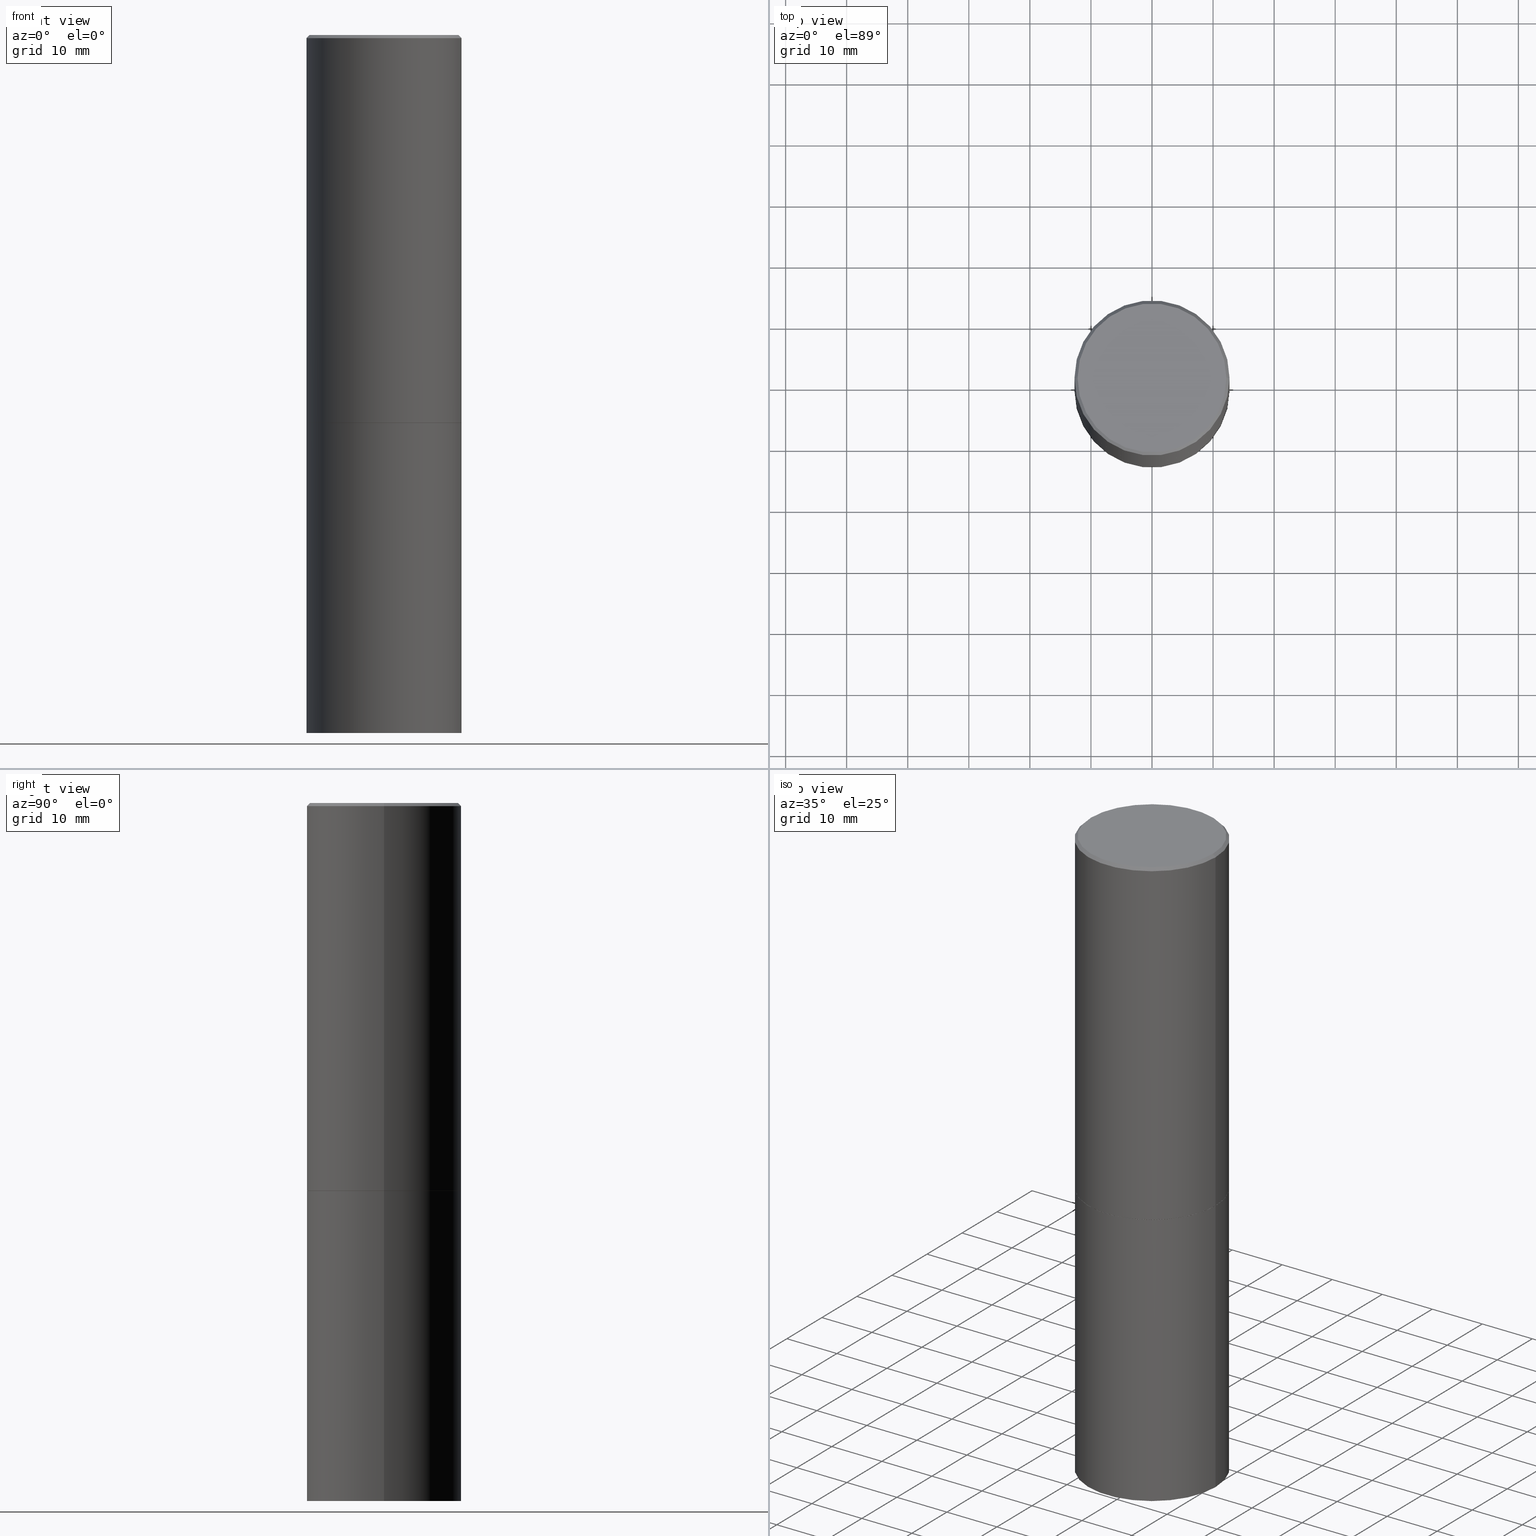
[diagram: canonical four-view strip — front | top / right | iso, engineering-drawing reading convention]
A machine part, canonical four-view strip (front | top / right | iso — engineering-drawing reading convention). The complete STEP part file that produces these views, byte-faithful:
ISO-10303-21;
HEADER;
FILE_DESCRIPTION (( 'STEP AP203' ),
    '1' );
FILE_NAME ('38517.STEP',
    '2024-02-27T23:18:11',
    ( '' ),
    ( '' ),
    'SwSTEP 2.0',
    'SolidWorks 2023',
    '' );
FILE_SCHEMA (( 'CONFIG_CONTROL_DESIGN' ));
ENDSEC;

DATA;
#1 = ORIENTED_EDGE ( 'NONE', *, *, #338, .F. ) ;
#2 = DIRECTION ( 'NONE',  ( -1.000000000000000000, 6.982962677686265922E-15, -4.876176775795935793E-29 ) ) ;
#3 = VERTEX_POINT ( 'NONE', #87 ) ;
#4 = EDGE_CURVE ( 'NONE', #202, #262, #39, .T. ) ;
#5 = ORIENTED_EDGE ( 'NONE', *, *, #4, .T. ) ;
#6 = PERSON_AND_ORGANIZATION ( #242, #137 ) ;
#7 = EDGE_LOOP ( 'NONE', ( #149, #59 ) ) ;
#8 = CARTESIAN_POINT ( 'NONE',  ( -0.5000000000000000000, -8.448070674724411945E-16, -2.499000000000000110 ) ) ;
#9 = CARTESIAN_POINT ( 'NONE',  ( 0.000000000000000000, 0.000000000000000000, 0.000000000000000000 ) ) ;
#10 = CARTESIAN_POINT ( 'NONE',  ( 6.111226546656657010E-29, -8.725211865769021935E-15, -2.499000000000000110 ) ) ;
#11 = EDGE_LOOP ( 'NONE', ( #346, #80, #342, #333 ) ) ;
#12 = DIRECTION ( 'NONE',  ( 1.000000000000000000, -6.982962677686266711E-15, 0.000000000000000000 ) ) ;
#13 = AXIS2_PLACEMENT_3D ( 'NONE', #180, #348, #64 ) ;
#14 = ORIENTED_EDGE ( 'NONE', *, *, #349, .T. ) ;
#15 = ADVANCED_FACE ( 'NONE', ( #125 ), #172, .F. ) ;
#16 = APPLICATION_CONTEXT ( 'configuration controlled 3d designs of mechanical parts and assemblies' ) ;
#17 = LINE ( 'NONE', #146, #173 ) ;
#18 = CALENDAR_DATE ( 2024, 27, 2 ) ;
#19 = CARTESIAN_POINT ( 'NONE',  ( -0.4989999999999999991, -5.177796641316744197E-15, -2.500000000000000444 ) ) ;
#20 = DIRECTION ( 'NONE',  ( -2.445468806185136597E-29, 3.491481338843145583E-15, 1.000000000000000000 ) ) ;
#21 = LINE ( 'NONE', #247, #121 ) ;
#22 = AXIS2_PLACEMENT_3D ( 'NONE', #10, #61, #354 ) ;
#23 = PERSON_AND_ORGANIZATION ( #242, #137 ) ;
#24 = CYLINDRICAL_SURFACE ( 'NONE', #200, 0.4999999999999998335 ) ;
#25 = FACE_OUTER_BOUND ( 'NONE', #223, .T. ) ;
#26 = DIRECTION ( 'NONE',  ( 0.7071067811865464625, -7.319954787623252890E-15, -0.7071067811865486830 ) ) ;
#27 = ORIENTED_EDGE ( 'NONE', *, *, #4, .F. ) ;
#28 = LENGTH_MEASURE_WITH_UNIT ( LENGTH_MEASURE( 0.02539999999999999897 ), #196 );
#29 = AXIS2_PLACEMENT_3D ( 'NONE', #72, #352, #68 ) ;
#30 = ORIENTED_EDGE ( 'NONE', *, *, #119, .F. ) ;
#31 = CC_DESIGN_PERSON_AND_ORGANIZATION_ASSIGNMENT ( #252, #322, ( #286 ) ) ;
#32 = AXIS2_PLACEMENT_3D ( 'NONE', #86, #43, #339 ) ;
#33 = EDGE_CURVE ( 'NONE', #100, #92, #261, .T. ) ;
#34 = LOCAL_TIME ( 18, 18, 11.00000000000000000, #205 ) ;
#35 = FACE_OUTER_BOUND ( 'NONE', #275, .T. ) ;
#36 = PERSON_AND_ORGANIZATION ( #242, #137 ) ;
#37 = CYLINDRICAL_SURFACE ( 'NONE', #29, 0.5000000000000000000 ) ;
#38 = ADVANCED_FACE ( 'NONE', ( #212 ), #235, .T. ) ;
#39 = CIRCLE ( 'NONE', #22, 0.5000000000000000000 ) ;
#40 = MANIFOLD_SOLID_BREP ( 'Body-Move/Copy2[1]', #271 ) ;
#41 = DIRECTION ( 'NONE',  ( -2.445468806185136597E-29, 3.491481338843145583E-15, 1.000000000000000000 ) ) ;
#42 = SECURITY_CLASSIFICATION_LEVEL ( 'unclassified' ) ;
#43 = DIRECTION ( 'NONE',  ( -2.445468806185136597E-29, 3.491481338843145583E-15, 1.000000000000000000 ) ) ;
#44 = DATE_AND_TIME ( #215, #151 ) ;
#45 = AXIS2_PLACEMENT_3D ( 'NONE', #269, #360, #154 ) ;
#46 = MECHANICAL_CONTEXT ( 'NONE', #166, 'mechanical' ) ;
#47 = CARTESIAN_POINT ( 'NONE',  ( 0.5000000000000000000, -1.221669320461215371E-14, -2.499000000000000110 ) ) ;
#48 = DIRECTION ( 'NONE',  ( 2.445468806185136597E-29, -3.491481338843145583E-15, -1.000000000000000000 ) ) ;
#49 = ADVANCED_BREP_SHAPE_REPRESENTATION ( '38517', ( #40, #285, #94 ), #111 ) ;
#50 = ADVANCED_FACE ( 'NONE', ( #144 ), #37, .T. ) ;
#51 = ORIENTED_EDGE ( 'NONE', *, *, #55, .F. ) ;
#52 = DIRECTION ( 'NONE',  ( 2.438088387897960049E-29, -3.491481338843145188E-15, -1.000000000000000000 ) ) ;
#53 = ORIENTED_EDGE ( 'NONE', *, *, #55, .T. ) ;
#54 = ORIENTED_EDGE ( 'NONE', *, *, #356, .T. ) ;
#55 = EDGE_CURVE ( 'NONE', #92, #279, #219, .T. ) ;
#56 = DIRECTION ( 'NONE',  ( 1.000000000000000000, -6.982962677686266711E-15, 0.000000000000000000 ) ) ;
#57 = CIRCLE ( 'NONE', #224, 0.4989999999999999991 ) ;
#58 = SECURITY_CLASSIFICATION ( '', '', #42 ) ;
#59 = ORIENTED_EDGE ( 'NONE', *, *, #204, .F. ) ;
#60 = COORDINATED_UNIVERSAL_TIME_OFFSET ( 5, 0, .BEHIND. ) ;
#61 = DIRECTION ( 'NONE',  ( -2.445468806185136597E-29, 3.491481338843145583E-15, 1.000000000000000000 ) ) ;
#62 = AXIS2_PLACEMENT_3D ( 'NONE', #287, #77, #187 ) ;
#63 = DIRECTION ( 'NONE',  ( -2.445468806185136597E-29, 3.491481338843145583E-15, 1.000000000000000000 ) ) ;
#64 = DIRECTION ( 'NONE',  ( -1.000000000000000000, 6.982962677686265922E-15, -4.876176775795935793E-29 ) ) ;
#65 = DIRECTION ( 'NONE',  ( -2.445468806185136877E-29, 3.491481338843145188E-15, 1.000000000000000000 ) ) ;
#66 = EDGE_LOOP ( 'NONE', ( #115, #171 ) ) ;
#67 = EDGE_CURVE ( 'NONE', #202, #169, #17, .T. ) ;
#68 = DIRECTION ( 'NONE',  ( 1.000000000000000000, -6.982962677686266711E-15, 4.876176775795935793E-29 ) ) ;
#69 = PERSON_AND_ORGANIZATION_ROLE ( 'design_supplier' ) ;
#70 = ORIENTED_EDGE ( 'NONE', *, *, #217, .T. ) ;
#71 = CIRCLE ( 'NONE', #45, 0.5000000000000000000 ) ;
#72 = CARTESIAN_POINT ( 'NONE',  ( 0.000000000000000000, 0.000000000000000000, 0.000000000000000000 ) ) ;
#73 = DIRECTION ( 'NONE',  ( 1.000000000000000000, -6.982962677686267499E-15, 4.876176775795936353E-29 ) ) ;
#74 = ADVANCED_FACE ( 'NONE', ( #118 ), #206, .T. ) ;
#75 = CARTESIAN_POINT ( 'NONE',  ( 6.113672015462842613E-29, -8.728703347107864943E-15, -2.500000000000000000 ) ) ;
#76 = DIRECTION ( 'NONE',  ( 0.7071067811864267805, -2.468850131080992517E-15, 0.7071067811866682540 ) ) ;
#77 = DIRECTION ( 'NONE',  ( 2.445468806185136597E-29, -3.491481338843145583E-15, -1.000000000000000000 ) ) ;
#78 = EDGE_CURVE ( 'NONE', #210, #202, #21, .T. ) ;
#79 = AXIS2_PLACEMENT_3D ( 'NONE', #259, #41, #267 ) ;
#80 = ORIENTED_EDGE ( 'NONE', *, *, #33, .T. ) ;
#81 = UNCERTAINTY_MEASURE_WITH_UNIT (LENGTH_MEASURE( 1.000000000000000082E-05 ), #306, 'distance_accuracy_value', 'NONE');
#82 = ADVANCED_FACE ( 'NONE', ( #250 ), #302, .T. ) ;
#83 = EDGE_LOOP ( 'NONE', ( #239, #197 ) ) ;
#84 = DATE_AND_TIME ( #260, #159 ) ;
#85 = AXIS2_PLACEMENT_3D ( 'NONE', #270, #281, #251 ) ;
#86 = CARTESIAN_POINT ( 'NONE',  ( 6.113672015462842613E-29, -8.728703347107866520E-15, -2.500000000000000444 ) ) ;
#87 = CARTESIAN_POINT ( 'NONE',  ( -0.4799999999999996492, 3.386736898677836830E-15, 1.280553747027767124E-17 ) ) ;
#88 = VERTEX_POINT ( 'NONE', #353 ) ;
#89 = APPROVAL ( #139, 'UNSPECIFIED' ) ;
#90 = CYLINDRICAL_SURFACE ( 'NONE', #303, 0.4999999999999998335 ) ;
#91 = DIRECTION ( 'NONE',  ( 1.000000000000000000, -6.982962677686269077E-15, 0.000000000000000000 ) ) ;
#92 = VERTEX_POINT ( 'NONE', #209 ) ;
#93 = VECTOR ( 'NONE', #328, 39.37007874015748143 ) ;
#94 = AXIS2_PLACEMENT_3D ( 'NONE', #222, #336, #253 ) ;
#95 = EDGE_CURVE ( 'NONE', #210, #325, #57, .T. ) ;
#96 = APPROVAL_DATE_TIME ( #84, #89 ) ;
#97 = CARTESIAN_POINT ( 'NONE',  ( 0.4999999999999997224, -3.500078625662627502E-15, -0.02000000000000011144 ) ) ;
#98 = PERSON_AND_ORGANIZATION_ROLE ( 'classification_officer' ) ;
#99 = CC_DESIGN_DATE_AND_TIME_ASSIGNMENT ( #184, #246, ( #58 ) ) ;
#100 = VERTEX_POINT ( 'NONE', #258 ) ;
#101 = ADVANCED_FACE ( 'NONE', ( #238 ), #90, .T. ) ;
#102 = ORIENTED_EDGE ( 'NONE', *, *, #299, .F. ) ;
#103 = AXIS2_PLACEMENT_3D ( 'NONE', #135, #165, #168 ) ;
#104 = CONICAL_SURFACE ( 'NONE', #62, 0.4999999999999997224, 0.7853981633974467247 ) ;
#105 = CARTESIAN_POINT ( 'NONE',  ( 3.491481338843243007E-15, 0.4999999999999842903, -4.500000000000001776 ) ) ;
#106 = ORIENTED_EDGE ( 'NONE', *, *, #217, .F. ) ;
#107 = ORIENTED_EDGE ( 'NONE', *, *, #280, .T. ) ;
#108 = EDGE_LOOP ( 'NONE', ( #237, #207, #319, #51 ) ) ;
#109 = CIRCLE ( 'NONE', #85, 0.4999999999999997224 ) ;
#110 = EDGE_CURVE ( 'NONE', #325, #262, #240, .T. ) ;
#111 =( GEOMETRIC_REPRESENTATION_CONTEXT ( 3 ) GLOBAL_UNCERTAINTY_ASSIGNED_CONTEXT ( ( #81 ) ) GLOBAL_UNIT_ASSIGNED_CONTEXT ( ( #306, #225, #185 ) ) REPRESENTATION_CONTEXT ( 'NONE', 'WORKASPACE' ) );
#112 = CARTESIAN_POINT ( 'NONE',  ( 0.5000000000000000000, -3.491481338843133355E-15, 2.438088387897967896E-29 ) ) ;
#113 = DIRECTION ( 'NONE',  ( -2.445468806185136877E-29, 3.491481338843145188E-15, 1.000000000000000000 ) ) ;
#114 = ADVANCED_FACE ( 'NONE', ( #35 ), #104, .T. ) ;
#115 = ORIENTED_EDGE ( 'NONE', *, *, #119, .T. ) ;
#116 = CIRCLE ( 'NONE', #295, 0.4989999999999999991 ) ;
#117 = DIRECTION ( 'NONE',  ( 1.000000000000000000, -6.982962677686266711E-15, 0.000000000000000000 ) ) ;
#118 = FACE_OUTER_BOUND ( 'NONE', #284, .T. ) ;
#119 = EDGE_CURVE ( 'NONE', #3, #88, #307, .T. ) ;
#120 = EDGE_LOOP ( 'NONE', ( #256, #14, #178, #106 ) ) ;
#121 = VECTOR ( 'NONE', #76, 39.37007874015748143 ) ;
#122 = CARTESIAN_POINT ( 'NONE',  ( 6.113672015462842613E-29, -8.728703347107866520E-15, -2.500000000000000444 ) ) ;
#123 = CARTESIAN_POINT ( 'NONE',  ( 6.113672015462842613E-29, -8.728703347107864943E-15, -2.500000000000000000 ) ) ;
#124 = COORDINATED_UNIVERSAL_TIME_OFFSET ( 5, 0, .BEHIND. ) ;
#125 = FACE_OUTER_BOUND ( 'NONE', #66, .T. ) ;
#126 = DIRECTION ( 'NONE',  ( 1.000000000000000000, -6.982962677686267499E-15, 4.876036955247132767E-29 ) ) ;
#127 = ADVANCED_FACE ( 'NONE', ( #193 ), #249, .F. ) ;
#128 = VECTOR ( 'NONE', #26, 39.37007874015748143 ) ;
#129 = APPROVAL_PERSON_ORGANIZATION ( #36, #89, #145 ) ;
#130 = CALENDAR_DATE ( 2024, 27, 2 ) ;
#131 = CARTESIAN_POINT ( 'NONE',  ( 0.4989999999999999991, -1.221320172327331386E-14, -2.500000000000000444 ) ) ;
#132 = CIRCLE ( 'NONE', #344, 0.5000000000000000000 ) ;
#133 = ORIENTED_EDGE ( 'NONE', *, *, #95, .T. ) ;
#134 = ADVANCED_FACE ( 'NONE', ( #25 ), #24, .T. ) ;
#135 = CARTESIAN_POINT ( 'NONE',  ( 6.111226546656657010E-29, -8.725211865769021935E-15, -2.499000000000000110 ) ) ;
#136 = CIRCLE ( 'NONE', #195, 0.4799999999999996492 ) ;
#137 = ORGANIZATION ( 'UNSPECIFIED', 'UNSPECIFIED', '' ) ;
#138 = ORIENTED_EDGE ( 'NONE', *, *, #338, .T. ) ;
#139 = APPROVAL_STATUS ( 'not_yet_approved' ) ;
#140 = EDGE_CURVE ( 'NONE', #323, #100, #71, .T. ) ;
#141 = ORIENTED_EDGE ( 'NONE', *, *, #183, .F. ) ;
#142 = CC_DESIGN_PERSON_AND_ORGANIZATION_ASSIGNMENT ( #23, #69, ( #286 ) ) ;
#143 = CIRCLE ( 'NONE', #213, 0.5000000000000000000 ) ;
#144 = FACE_OUTER_BOUND ( 'NONE', #108, .T. ) ;
#145 = APPROVAL_ROLE ( '' ) ;
#146 = CARTESIAN_POINT ( 'NONE',  ( 0.4999999999999998335, -3.491481338843132566E-15, 2.438088387897967336E-29 ) ) ;
#147 = ORIENTED_EDGE ( 'NONE', *, *, #110, .T. ) ;
#148 = PERSON_AND_ORGANIZATION ( #242, #137 ) ;
#149 = ORIENTED_EDGE ( 'NONE', *, *, #140, .F. ) ;
#150 = AXIS2_PLACEMENT_3D ( 'NONE', #347, #48, #160 ) ;
#151 = LOCAL_TIME ( 18, 18, 11.00000000000000000, #124 ) ;
#152 = LOCAL_TIME ( 18, 18, 11.00000000000000000, #264 ) ;
#153 = COORDINATED_UNIVERSAL_TIME_OFFSET ( 5, 0, .BEHIND. ) ;
#154 = DIRECTION ( 'NONE',  ( 1.000000000000000000, -6.982962677686266711E-15, 0.000000000000000000 ) ) ;
#155 = DIRECTION ( 'NONE',  ( -2.445468806185136877E-29, 3.491481338843145188E-15, 1.000000000000000000 ) ) ;
#156 = CARTESIAN_POINT ( 'NONE',  ( 6.113672015462842613E-29, -8.728703347107866520E-15, -2.500000000000000444 ) ) ;
#157 = PERSON_AND_ORGANIZATION_ROLE ( 'creator' ) ;
#158 = AXIS2_PLACEMENT_3D ( 'NONE', #305, #329, #301 ) ;
#159 = LOCAL_TIME ( 18, 18, 11.00000000000000000, #60 ) ;
#160 = DIRECTION ( 'NONE',  ( -1.000000000000000000, 6.982962677686266711E-15, 0.000000000000000000 ) ) ;
#161 = CARTESIAN_POINT ( 'NONE',  ( 1.100460962783311469E-28, -1.571166602479415690E-14, -4.500000000000000000 ) ) ;
#162 = ORIENTED_EDGE ( 'NONE', *, *, #192, .F. ) ;
#163 = CC_DESIGN_PERSON_AND_ORGANIZATION_ASSIGNMENT ( #148, #157, ( #290 ) ) ;
#164 = LINE ( 'NONE', #276, #128 ) ;
#165 = DIRECTION ( 'NONE',  ( -2.445468806185136597E-29, 3.491481338843145583E-15, 1.000000000000000000 ) ) ;
#166 = APPLICATION_CONTEXT ( 'configuration controlled 3d designs of mechanical parts and assemblies' ) ;
#167 = CC_DESIGN_PERSON_AND_ORGANIZATION_ASSIGNMENT ( #6, #268, ( #236 ) ) ;
#168 = DIRECTION ( 'NONE',  ( 1.000000000000000000, -6.982962677686265133E-15, 0.000000000000000000 ) ) ;
#169 = VERTEX_POINT ( 'NONE', #97 ) ;
#170 = CIRCLE ( 'NONE', #190, 0.4999999999999997224 ) ;
#171 = ORIENTED_EDGE ( 'NONE', *, *, #183, .T. ) ;
#172 = PLANE ( 'NONE',  #13 ) ;
#173 = VECTOR ( 'NONE', #155, 39.37007874015748143 ) ;
#174 = PERSON_AND_ORGANIZATION ( #242, #137 ) ;
#175 = DIRECTION ( 'NONE',  ( -0.7071067811864267805, 7.493145998869918709E-15, 0.7071067811866682540 ) ) ;
#176 = CALENDAR_DATE ( 2024, 27, 2 ) ;
#177 = CARTESIAN_POINT ( 'NONE',  ( -0.5000000000000000000, 3.552713678800500929E-15, -2.459467545127452891E-29 ) ) ;
#178 = ORIENTED_EDGE ( 'NONE', *, *, #78, .T. ) ;
#179 = PRODUCT_DEFINITION_SHAPE ( 'NONE', 'NONE',  #290 ) ;
#180 = CARTESIAN_POINT ( 'NONE',  ( 3.351822085289405181E-15, 0.4799999999999996492, -1.669508273909558064E-15 ) ) ;
#181 = DIRECTION ( 'NONE',  ( -2.445468806185136597E-29, 3.491481338843145583E-15, 1.000000000000000000 ) ) ;
#182 = DIRECTION ( 'NONE',  ( -2.445468806185136877E-29, 3.491481338843145188E-15, 1.000000000000000000 ) ) ;
#183 = EDGE_CURVE ( 'NONE', #88, #3, #136, .T. ) ;
#184 = DATE_AND_TIME ( #130, #152 ) ;
#185 =( NAMED_UNIT ( * ) SI_UNIT ( $, .STERADIAN. ) SOLID_ANGLE_UNIT ( ) );
#186 = LINE ( 'NONE', #330, #93 ) ;
#187 = DIRECTION ( 'NONE',  ( -1.000000000000000000, 6.982962677686266711E-15, 0.000000000000000000 ) ) ;
#188 = APPLICATION_PROTOCOL_DEFINITION ( 'international standard', 'config_control_design', 1994, #166 ) ;
#189 = DIRECTION ( 'NONE',  ( -2.438088387897960049E-29, 3.491481338843145188E-15, 1.000000000000000000 ) ) ;
#190 = AXIS2_PLACEMENT_3D ( 'NONE', #208, #320, #203 ) ;
#191 = DIRECTION ( 'NONE',  ( -2.445468806185136597E-29, 3.491481338843145583E-15, 1.000000000000000000 ) ) ;
#192 = EDGE_CURVE ( 'NONE', #88, #169, #164, .T. ) ;
#193 = FACE_OUTER_BOUND ( 'NONE', #83, .T. ) ;
#194 = DESIGN_CONTEXT ( 'detailed design', #16, 'design' ) ;
#195 = AXIS2_PLACEMENT_3D ( 'NONE', #304, #20, #126 ) ;
#196 =( LENGTH_UNIT ( ) NAMED_UNIT ( * ) SI_UNIT ( $, .METRE. ) );
#197 = ORIENTED_EDGE ( 'NONE', *, *, #349, .F. ) ;
#198 = ORIENTED_EDGE ( 'NONE', *, *, #299, .T. ) ;
#199 = CLOSED_SHELL ( 'NONE', ( #363, #101, #114, #74, #134, #38, #127, #15 ) ) ;
#200 = AXIS2_PLACEMENT_3D ( 'NONE', #332, #191, #73 ) ;
#201 = DATE_AND_TIME ( #176, #34 ) ;
#202 = VERTEX_POINT ( 'NONE', #47 ) ;
#203 = DIRECTION ( 'NONE',  ( 1.000000000000000000, -6.982962677686266711E-15, 0.000000000000000000 ) ) ;
#204 = EDGE_CURVE ( 'NONE', #100, #323, #143, .T. ) ;
#205 = COORDINATED_UNIVERSAL_TIME_OFFSET ( 5, 0, .BEHIND. ) ;
#206 = CONICAL_SURFACE ( 'NONE', #150, 0.4999999999999997224, 0.7853981633974467247 ) ;
#207 = ORIENTED_EDGE ( 'NONE', *, *, #204, .T. ) ;
#208 = CARTESIAN_POINT ( 'NONE',  ( 4.890937612370301184E-31, -6.982962677686329819E-17, -0.02000000000000011144 ) ) ;
#209 = CARTESIAN_POINT ( 'NONE',  ( -0.5000000000000000000, -8.667471007150509990E-15, -2.500000000000000000 ) ) ;
#210 = VERTEX_POINT ( 'NONE', #131 ) ;
#211 = ADVANCED_FACE ( 'NONE', ( #358 ), #366, .T. ) ;
#212 = FACE_OUTER_BOUND ( 'NONE', #120, .T. ) ;
#213 = AXIS2_PLACEMENT_3D ( 'NONE', #161, #274, #243 ) ;
#214 = DIRECTION ( 'NONE',  ( -1.000000000000000000, 6.982962677686265922E-15, -4.876176775795935793E-29 ) ) ;
#215 = CALENDAR_DATE ( 2024, 27, 2 ) ;
#216 = APPROVAL_STATUS ( 'not_yet_approved' ) ;
#217 = EDGE_CURVE ( 'NONE', #262, #202, #359, .T. ) ;
#218 = DIRECTION ( 'NONE',  ( 1.000000000000000000, -6.982962677686265922E-15, 4.876176775795935793E-29 ) ) ;
#219 = CIRCLE ( 'NONE', #79, 0.5000000000000000000 ) ;
#220 = DIMENSIONAL_EXPONENTS ( 1.000000000000000000, 0.000000000000000000, 0.000000000000000000, 0.000000000000000000, 0.000000000000000000, 0.000000000000000000, 0.000000000000000000 ) ;
#221 = CARTESIAN_POINT ( 'NONE',  ( -0.4999999999999998335, 3.552713678800499746E-15, -2.459467545127452330E-29 ) ) ;
#222 = CARTESIAN_POINT ( 'NONE',  ( 0.000000000000000000, 0.000000000000000000, 0.000000000000000000 ) ) ;
#223 = EDGE_LOOP ( 'NONE', ( #102, #70, #314, #234 ) ) ;
#224 = AXIS2_PLACEMENT_3D ( 'NONE', #122, #315, #12 ) ;
#225 =( NAMED_UNIT ( * ) PLANE_ANGLE_UNIT ( ) SI_UNIT ( $, .RADIAN. ) );
#226 = ORIENTED_EDGE ( 'NONE', *, *, #67, .F. ) ;
#227 = APPROVAL_DATE_TIME ( #357, #334 ) ;
#228 = ORIENTED_EDGE ( 'NONE', *, *, #192, .T. ) ;
#229 = AXIS2_PLACEMENT_3D ( 'NONE', #316, #181, #293 ) ;
#230 = CC_DESIGN_APPROVAL ( #89, ( #286 ) ) ;
#231 = EDGE_CURVE ( 'NONE', #323, #279, #278, .T. ) ;
#232 = CARTESIAN_POINT ( 'NONE',  ( 0.5000000000000000000, -1.222018468595099830E-14, -2.500000000000000000 ) ) ;
#233 = APPROVAL_STATUS ( 'not_yet_approved' ) ;
#234 = ORIENTED_EDGE ( 'NONE', *, *, #280, .F. ) ;
#235 = CONICAL_SURFACE ( 'NONE', #282, 0.4989999999999999991, 0.7853981633972775267 ) ;
#236 = PRODUCT ( '38517', '38517', '', ( #46 ) ) ;
#237 = ORIENTED_EDGE ( 'NONE', *, *, #33, .F. ) ;
#238 = FACE_OUTER_BOUND ( 'NONE', #337, .T. ) ;
#239 = ORIENTED_EDGE ( 'NONE', *, *, #95, .F. ) ;
#240 = LINE ( 'NONE', #355, #257 ) ;
#241 = DIRECTION ( 'NONE',  ( -2.445468806185136597E-29, 3.491481338843145583E-15, 1.000000000000000000 ) ) ;
#242 = PERSON ( 'UNSPECIFIED', 'UNSPECIFIED', 'UNSPECIFIED', ('UNSPECIFIED'), ('UNSPECIFIED'), ('UNSPECIFIED') ) ;
#243 = DIRECTION ( 'NONE',  ( 1.000000000000000000, -6.982962677686266711E-15, 0.000000000000000000 ) ) ;
#244 = PERSON_AND_ORGANIZATION ( #242, #137 ) ;
#245 = CC_DESIGN_DATE_AND_TIME_ASSIGNMENT ( #201, #313, ( #290 ) ) ;
#246 = DATE_TIME_ROLE ( 'classification_date' ) ;
#247 = CARTESIAN_POINT ( 'NONE',  ( 0.4989999999999999991, -1.221320172327331386E-14, -2.500000000000000444 ) ) ;
#248 = LINE ( 'NONE', #221, #277 ) ;
#249 = PLANE ( 'NONE',  #311 ) ;
#250 = FACE_OUTER_BOUND ( 'NONE', #11, .T. ) ;
#251 = DIRECTION ( 'NONE',  ( 1.000000000000000000, -6.982962677686266711E-15, 0.000000000000000000 ) ) ;
#252 = PERSON_AND_ORGANIZATION ( #242, #137 ) ;
#253 = DIRECTION ( 'NONE',  ( 1.000000000000000000, 0.000000000000000000, 0.000000000000000000 ) ) ;
#254 = VERTEX_POINT ( 'NONE', #343 ) ;
#255 = PLANE ( 'NONE',  #317 ) ;
#256 = ORIENTED_EDGE ( 'NONE', *, *, #110, .F. ) ;
#257 = VECTOR ( 'NONE', #175, 39.37007874015748143 ) ;
#258 = CARTESIAN_POINT ( 'NONE',  ( -0.5000000000000000000, -8.667471007150509990E-15, -4.500000000000000000 ) ) ;
#259 = CARTESIAN_POINT ( 'NONE',  ( 6.113672015462842613E-29, -8.728703347107864943E-15, -2.500000000000000000 ) ) ;
#260 = CALENDAR_DATE ( 2024, 27, 2 ) ;
#261 = LINE ( 'NONE', #177, #341 ) ;
#262 = VERTEX_POINT ( 'NONE', #8 ) ;
#263 = APPROVAL_DATE_TIME ( #44, #309 ) ;
#264 = COORDINATED_UNIVERSAL_TIME_OFFSET ( 5, 0, .BEHIND. ) ;
#265 = PRODUCT_RELATED_PRODUCT_CATEGORY ( 'detail', '', ( #236 ) ) ;
#266 = DIRECTION ( 'NONE',  ( 1.000000000000000000, -6.982962677686267499E-15, 4.876176775795936353E-29 ) ) ;
#267 = DIRECTION ( 'NONE',  ( 1.000000000000000000, -6.982962677686269077E-15, 0.000000000000000000 ) ) ;
#268 = PERSON_AND_ORGANIZATION_ROLE ( 'design_owner' ) ;
#269 = CARTESIAN_POINT ( 'NONE',  ( 1.100460962783311469E-28, -1.571166602479415690E-14, -4.500000000000000000 ) ) ;
#270 = CARTESIAN_POINT ( 'NONE',  ( 4.890937612370301184E-31, -6.982962677686329819E-17, -0.02000000000000011144 ) ) ;
#271 = CLOSED_SHELL ( 'NONE', ( #82, #211, #321, #50 ) ) ;
#272 = AXIS2_PLACEMENT_3D ( 'NONE', #105, #52, #2 ) ;
#273 = SHAPE_DEFINITION_REPRESENTATION ( #179, #49 ) ;
#274 = DIRECTION ( 'NONE',  ( -2.445468806185136597E-29, 3.491481338843145583E-15, 1.000000000000000000 ) ) ;
#275 = EDGE_LOOP ( 'NONE', ( #141, #228, #291, #1 ) ) ;
#276 = CARTESIAN_POINT ( 'NONE',  ( 0.4999999999999997224, -3.500078625662627502E-15, -0.02000000000000011144 ) ) ;
#277 = VECTOR ( 'NONE', #65, 39.37007874015748143 ) ;
#278 = LINE ( 'NONE', #112, #351 ) ;
#279 = VERTEX_POINT ( 'NONE', #232 ) ;
#280 = EDGE_CURVE ( 'NONE', #254, #169, #170, .T. ) ;
#281 = DIRECTION ( 'NONE',  ( -2.445468806185136597E-29, 3.491481338843145583E-15, 1.000000000000000000 ) ) ;
#282 = AXIS2_PLACEMENT_3D ( 'NONE', #294, #288, #117 ) ;
#283 = EDGE_CURVE ( 'NONE', #169, #254, #109, .T. ) ;
#284 = EDGE_LOOP ( 'NONE', ( #162, #30, #138, #107 ) ) ;
#285 = MANIFOLD_SOLID_BREP ( 'Body-Move/Copy2[2]', #199 ) ;
#286 = PRODUCT_DEFINITION_FORMATION_WITH_SPECIFIED_SOURCE ( 'ANY', '', #236, .NOT_KNOWN. ) ;
#287 = CARTESIAN_POINT ( 'NONE',  ( 4.890937612370301184E-31, -6.982962677686329819E-17, -0.02000000000000011144 ) ) ;
#288 = DIRECTION ( 'NONE',  ( -2.445468806185136597E-29, 3.491481338843145583E-15, 1.000000000000000000 ) ) ;
#289 = FACE_OUTER_BOUND ( 'NONE', #298, .T. ) ;
#290 = PRODUCT_DEFINITION ( 'UNKNOWN', '', #286, #194 ) ;
#291 = ORIENTED_EDGE ( 'NONE', *, *, #283, .T. ) ;
#292 = CARTESIAN_POINT ( 'NONE',  ( 0.5000000000000000000, -1.920314736363729025E-14, -4.500000000000000000 ) ) ;
#293 = DIRECTION ( 'NONE',  ( 1.000000000000000000, -6.982962677686266711E-15, 4.876176775795935793E-29 ) ) ;
#294 = CARTESIAN_POINT ( 'NONE',  ( 6.113672015462842613E-29, -8.728703347107866520E-15, -2.500000000000000444 ) ) ;
#295 = AXIS2_PLACEMENT_3D ( 'NONE', #156, #308, #56 ) ;
#296 = CC_DESIGN_APPROVAL ( #309, ( #290 ) ) ;
#297 = APPROVAL_ROLE ( '' ) ;
#298 = EDGE_LOOP ( 'NONE', ( #54, #53 ) ) ;
#299 = EDGE_CURVE ( 'NONE', #262, #254, #248, .T. ) ;
#300 = APPLICATION_PROTOCOL_DEFINITION ( 'international standard', 'config_control_design', 1994, #16 ) ;
#301 = DIRECTION ( 'NONE',  ( 1.000000000000000000, -6.982962677686267499E-15, 4.876036955247132767E-29 ) ) ;
#302 = CYLINDRICAL_SURFACE ( 'NONE', #229, 0.5000000000000000000 ) ;
#303 = AXIS2_PLACEMENT_3D ( 'NONE', #9, #63, #266 ) ;
#304 = CARTESIAN_POINT ( 'NONE',  ( -3.131554243005659264E-46, 4.471029511141341874E-32, 1.280553747030123384E-17 ) ) ;
#305 = CARTESIAN_POINT ( 'NONE',  ( -3.131554243005659264E-46, 4.471029511141341874E-32, 1.280553747030123384E-17 ) ) ;
#306 =( CONVERSION_BASED_UNIT ( 'INCH', #28 ) LENGTH_UNIT ( ) NAMED_UNIT ( #220 ) );
#307 = CIRCLE ( 'NONE', #158, 0.4799999999999996492 ) ;
#308 = DIRECTION ( 'NONE',  ( -2.445468806185136597E-29, 3.491481338843145583E-15, 1.000000000000000000 ) ) ;
#309 = APPROVAL ( #233, 'UNSPECIFIED' ) ;
#310 = ORIENTED_EDGE ( 'NONE', *, *, #78, .F. ) ;
#311 = AXIS2_PLACEMENT_3D ( 'NONE', #75, #189, #218 ) ;
#312 = APPROVAL_PERSON_ORGANIZATION ( #361, #334, #331 ) ;
#313 = DATE_TIME_ROLE ( 'creation_date' ) ;
#314 = ORIENTED_EDGE ( 'NONE', *, *, #67, .T. ) ;
#315 = DIRECTION ( 'NONE',  ( -2.445468806185136597E-29, 3.491481338843145583E-15, 1.000000000000000000 ) ) ;
#316 = CARTESIAN_POINT ( 'NONE',  ( 0.000000000000000000, 0.000000000000000000, 0.000000000000000000 ) ) ;
#317 = AXIS2_PLACEMENT_3D ( 'NONE', #362, #324, #214 ) ;
#318 = LOCAL_TIME ( 18, 18, 11.00000000000000000, #153 ) ;
#319 = ORIENTED_EDGE ( 'NONE', *, *, #231, .T. ) ;
#320 = DIRECTION ( 'NONE',  ( -2.445468806185136597E-29, 3.491481338843145583E-15, 1.000000000000000000 ) ) ;
#321 = ADVANCED_FACE ( 'NONE', ( #289 ), #255, .F. ) ;
#322 = PERSON_AND_ORGANIZATION_ROLE ( 'creator' ) ;
#323 = VERTEX_POINT ( 'NONE', #292 ) ;
#324 = DIRECTION ( 'NONE',  ( 2.438088387897960049E-29, -3.491481338843145188E-15, -1.000000000000000000 ) ) ;
#325 = VERTEX_POINT ( 'NONE', #19 ) ;
#326 = CONICAL_SURFACE ( 'NONE', #32, 0.4989999999999999991, 0.7853981633972775267 ) ;
#327 = CC_DESIGN_APPROVAL ( #334, ( #58 ) ) ;
#328 = DIRECTION ( 'NONE',  ( -0.7071067811865464625, 2.468850131082245228E-15, -0.7071067811865486830 ) ) ;
#329 = DIRECTION ( 'NONE',  ( -2.445468806185136597E-29, 3.491481338843145583E-15, 1.000000000000000000 ) ) ;
#330 = CARTESIAN_POINT ( 'NONE',  ( -0.4999999999999997224, 3.421651712066268085E-15, -0.02000000000000011144 ) ) ;
#331 = APPROVAL_ROLE ( '' ) ;
#332 = CARTESIAN_POINT ( 'NONE',  ( 0.000000000000000000, 0.000000000000000000, 0.000000000000000000 ) ) ;
#333 = ORIENTED_EDGE ( 'NONE', *, *, #231, .F. ) ;
#334 = APPROVAL ( #216, 'UNSPECIFIED' ) ;
#335 = EDGE_LOOP ( 'NONE', ( #133, #147, #27, #310 ) ) ;
#336 = DIRECTION ( 'NONE',  ( 0.000000000000000000, 0.000000000000000000, 1.000000000000000000 ) ) ;
#337 = EDGE_LOOP ( 'NONE', ( #5, #198, #340, #226 ) ) ;
#338 = EDGE_CURVE ( 'NONE', #3, #254, #186, .T. ) ;
#339 = DIRECTION ( 'NONE',  ( 1.000000000000000000, -6.982962677686266711E-15, 0.000000000000000000 ) ) ;
#340 = ORIENTED_EDGE ( 'NONE', *, *, #283, .F. ) ;
#341 = VECTOR ( 'NONE', #182, 39.37007874015748143 ) ;
#342 = ORIENTED_EDGE ( 'NONE', *, *, #356, .F. ) ;
#343 = CARTESIAN_POINT ( 'NONE',  ( -0.4999999999999997224, 3.421651712066268085E-15, -0.02000000000000011144 ) ) ;
#344 = AXIS2_PLACEMENT_3D ( 'NONE', #123, #241, #91 ) ;
#345 = CC_DESIGN_SECURITY_CLASSIFICATION ( #58, ( #286 ) ) ;
#346 = ORIENTED_EDGE ( 'NONE', *, *, #140, .T. ) ;
#347 = CARTESIAN_POINT ( 'NONE',  ( 4.890937612370301184E-31, -6.982962677686329819E-17, -0.02000000000000011144 ) ) ;
#348 = DIRECTION ( 'NONE',  ( 2.438088387897960049E-29, -3.491481338843145188E-15, -1.000000000000000000 ) ) ;
#349 = EDGE_CURVE ( 'NONE', #325, #210, #116, .T. ) ;
#350 = FACE_OUTER_BOUND ( 'NONE', #335, .T. ) ;
#351 = VECTOR ( 'NONE', #113, 39.37007874015748143 ) ;
#352 = DIRECTION ( 'NONE',  ( -2.445468806185136597E-29, 3.491481338843145583E-15, 1.000000000000000000 ) ) ;
#353 = CARTESIAN_POINT ( 'NONE',  ( 0.4799999999999996492, -3.396558832296480127E-15, 1.280553747032483033E-17 ) ) ;
#354 = DIRECTION ( 'NONE',  ( 1.000000000000000000, -6.982962677686265133E-15, 0.000000000000000000 ) ) ;
#355 = CARTESIAN_POINT ( 'NONE',  ( -0.4989999999999999991, -5.183095095664967388E-15, -2.500000000000000444 ) ) ;
#356 = EDGE_CURVE ( 'NONE', #279, #92, #132, .T. ) ;
#357 = DATE_AND_TIME ( #18, #318 ) ;
#358 = FACE_OUTER_BOUND ( 'NONE', #7, .T. ) ;
#359 = CIRCLE ( 'NONE', #103, 0.5000000000000000000 ) ;
#360 = DIRECTION ( 'NONE',  ( -2.445468806185136597E-29, 3.491481338843145583E-15, 1.000000000000000000 ) ) ;
#361 = PERSON_AND_ORGANIZATION ( #242, #137 ) ;
#362 = CARTESIAN_POINT ( 'NONE',  ( 3.491481338843194098E-15, 0.4999999999999912292, -2.500000000000001776 ) ) ;
#363 = ADVANCED_FACE ( 'NONE', ( #350 ), #326, .T. ) ;
#364 = APPROVAL_PERSON_ORGANIZATION ( #174, #309, #297 ) ;
#365 = CC_DESIGN_PERSON_AND_ORGANIZATION_ASSIGNMENT ( #244, #98, ( #58 ) ) ;
#366 = PLANE ( 'NONE',  #272 ) ;
ENDSEC;
END-ISO-10303-21;
